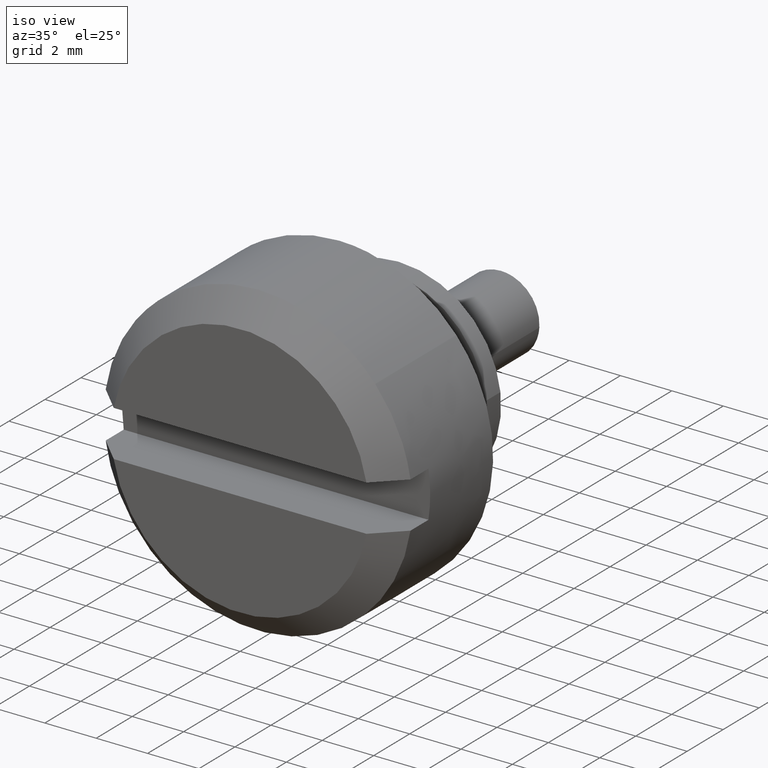
[diagram: clean part render]
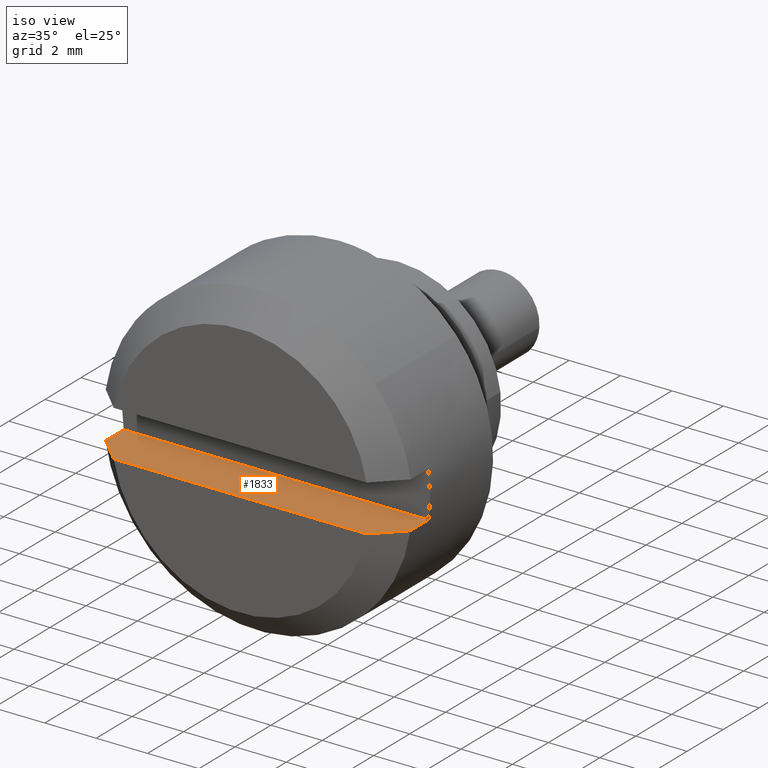
[diagram: same view with one face highlighted and labeled with its STEP entity id]
A machine part, iso view. The second image highlights one B-rep face of the part: STEP entity #1833.
In plain terms, the highlighted face is a freeform B-spline surface patch.
Its self-contained STEP definition (entity closure, byte-faithful):
#1625=CARTESIAN_POINT('',(-6.0,-5.932115979985550,-0.899999999999913));
#1626=VERTEX_POINT('',#1625);
#1640=CARTESIAN_POINT('',(-7.0,-5.932115979985531,-0.900000000000000));
#1641=VERTEX_POINT('',#1640);
#1642=CARTESIAN_POINT('',(-6.0,-5.932115979985550,-0.899999999999913));
#1643=CARTESIAN_POINT('',(-7.0,-5.932115979985531,-0.900000000000000));
#1644=QUASI_UNIFORM_CURVE('',1,(#1642,#1643),.UNSPECIFIED.,.F.,.U.);
#1645=EDGE_CURVE('',#1626,#1641,#1644,.T.);
#1647=CARTESIAN_POINT('',(-7.0,5.932115979985531,-0.900000000000000));
#1648=VERTEX_POINT('',#1647);
#1664=CARTESIAN_POINT('',(-6.0,5.932115979985550,-0.899999999999913));
#1665=VERTEX_POINT('',#1664);
#1666=CARTESIAN_POINT('',(-7.0,5.932115979985531,-0.900000000000000));
#1667=CARTESIAN_POINT('',(-6.0,5.932115979985550,-0.899999999999913));
#1668=QUASI_UNIFORM_CURVE('',1,(#1666,#1667),.UNSPECIFIED.,.F.,.U.);
#1669=EDGE_CURVE('',#1648,#1665,#1668,.T.);
#1796=CARTESIAN_POINT('',(-8.099899996123611,-6.524734454763845,-0.900000000000000));
#1797=CARTESIAN_POINT('',(-5.900099950232207,-6.524734454763845,-0.900000000000000));
#1798=CARTESIAN_POINT('',(-8.099899996123611,6.524734666912844,-0.900000000000000));
#1799=CARTESIAN_POINT('',(-5.900099950232207,6.524734666912844,-0.900000000000000));
#1800=B_SPLINE_SURFACE_WITH_KNOTS('',1,1,((#1796,#1798),(#1797,#1799)),.UNSPECIFIED.,.F.,.F.,.U.,(2,2),(2,2),(0.0,2.199800045891404),(0.0,13.049469121676690),.UNSPECIFIED.);
#1801=CARTESIAN_POINT('',(-6.0,5.932115979985550,-0.899999999999913));
#1802=CARTESIAN_POINT('',(-6.0,-5.932115979985550,-0.899999999999913));
#1803=QUASI_UNIFORM_CURVE('',1,(#1801,#1802),.UNSPECIFIED.,.F.,.U.);
#1804=EDGE_CURVE('',#1665,#1626,#1803,.T.);
#1805=ORIENTED_EDGE('',*,*,#1804,.F.);
#1806=ORIENTED_EDGE('',*,*,#1669,.F.);
#1807=CARTESIAN_POINT('',(-8.0,4.918333050943140,-0.900000000000000));
#1808=VERTEX_POINT('',#1807);
#1809=CARTESIAN_POINT('',(-8.0,4.918333050943140,-0.900000000000000));
#1810=CARTESIAN_POINT('',(-7.667146145494495,5.256736008597890,-0.900000000000000));
#1811=CARTESIAN_POINT('',(-7.333719979722740,5.594571625406596,-0.900000000000000));
#1812=CARTESIAN_POINT('',(-7.0,5.932115979985531,-0.900000000000000));
#1813=B_SPLINE_CURVE_WITH_KNOTS('',3,(#1809,#1810,#1811,#1812),.UNSPECIFIED.,.F.,.U.,(4,4),(0.909439502726439,1.0),.UNSPECIFIED.);
#1814=EDGE_CURVE('',#1808,#1648,#1813,.T.);
#1815=ORIENTED_EDGE('',*,*,#1814,.F.);
#1816=CARTESIAN_POINT('',(-8.0,-4.918333050943140,-0.900000000000000));
#1817=VERTEX_POINT('',#1816);
#1818=CARTESIAN_POINT('',(-8.0,4.918333050943140,-0.900000000000000));
#1819=CARTESIAN_POINT('',(-8.0,-4.918333050943140,-0.900000000000000));
#1820=QUASI_UNIFORM_CURVE('',1,(#1818,#1819),.UNSPECIFIED.,.F.,.U.);
#1821=EDGE_CURVE('',#1808,#1817,#1820,.T.);
#1822=ORIENTED_EDGE('',*,*,#1821,.T.);
#1823=CARTESIAN_POINT('',(-7.0,-5.932115979985531,-0.900000000000000));
#1824=CARTESIAN_POINT('',(-7.333720727770897,-5.594570497252879,-0.900000000000000));
#1825=CARTESIAN_POINT('',(-7.667147595700009,-5.256735125071742,-0.900000000000000));
#1826=CARTESIAN_POINT('',(-8.0,-4.918333050943140,-0.900000000000000));
#1827=B_SPLINE_CURVE_WITH_KNOTS('',3,(#1823,#1824,#1825,#1826),.UNSPECIFIED.,.F.,.U.,(4,4),(0.0,0.089797117276054),.UNSPECIFIED.);
#1828=EDGE_CURVE('',#1641,#1817,#1827,.T.);
#1829=ORIENTED_EDGE('',*,*,#1828,.F.);
#1830=ORIENTED_EDGE('',*,*,#1645,.F.);
#1831=EDGE_LOOP('',(#1805,#1806,#1815,#1822,#1829,#1830));
#1832=FACE_OUTER_BOUND('',#1831,.T.);
#1833=ADVANCED_FACE('',(#1832),#1800,.T.);